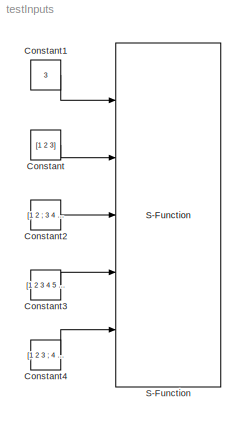
MODEL testInputs
KIND model
BLOCK [Constant] Constant
  SID = 1
  Value = [1 2 3]
BLOCK [Constant] Constant1
  SID = 2
  Value = 3
BLOCK [Constant] Constant2
  SID = 3
  Value = [1 2 ; 3 4 ; 5 6 ; 7 8]
BLOCK [Constant] Constant3
  SID = 4
  Value = [1 2 3 4 5 6]
BLOCK [Constant] Constant4
  SID = 5
  Value = [1 2 3 ; 4 5 6]
BLOCK [S-Function] S-Function
  EnableBusSupport = off
  FunctionName = sfunInputs
  Ports = [5]
  SFunctionDeploymentMode = off
  SID = 6
LINE Constant1:1 -> S-Function:1
LINE Constant2:1 -> S-Function:3
LINE Constant3:1 -> S-Function:4
LINE Constant4:1 -> S-Function:5
LINE Constant:1 -> S-Function:2
